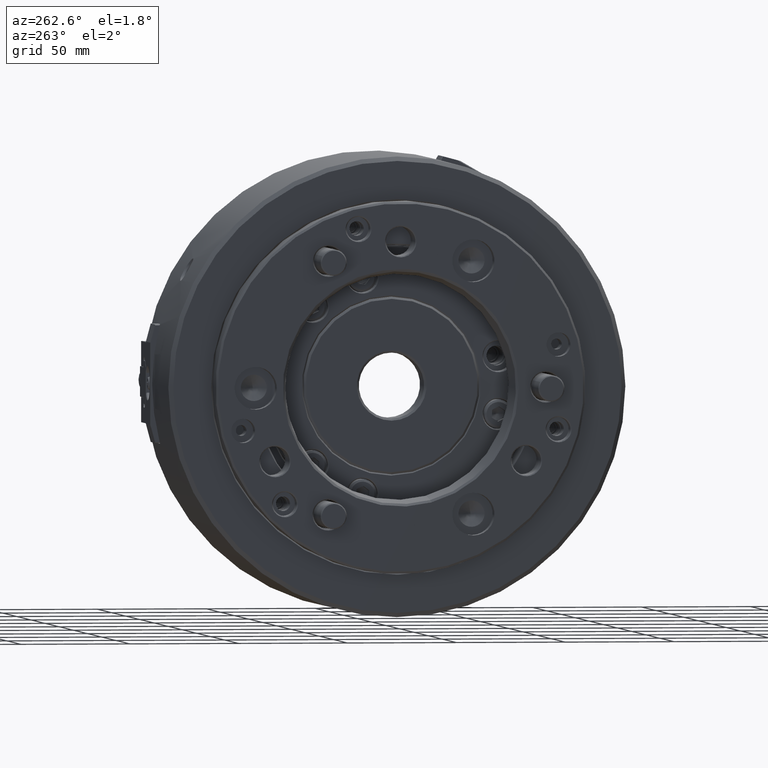
[diagram: clean part render]
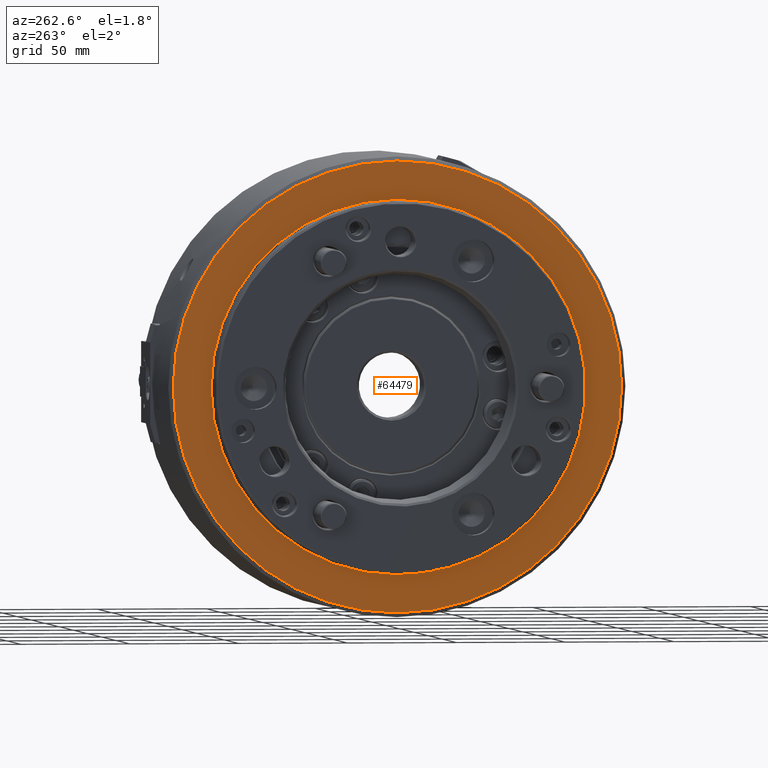
[diagram: same view with one face highlighted and labeled with its STEP entity id]
A machine part, auxiliary view. The second image highlights one B-rep face of the part: STEP entity #64479.
In plain terms, the highlighted planar face has unit normal (-1, 0, 0).
Its self-contained STEP definition (entity closure, byte-faithful):
#12225=PLANE('',#68291);
#24559=ORIENTED_EDGE('',*,*,#31997,.F.);
#24560=ORIENTED_EDGE('',*,*,#31996,.T.);
#31996=EDGE_CURVE('',#36516,#36516,#37873,.T.);
#31997=EDGE_CURVE('',#36517,#36517,#37874,.T.);
#36516=VERTEX_POINT('',#96493);
#36517=VERTEX_POINT('',#96496);
#37873=CIRCLE('',#68290,85.6);
#37874=CIRCLE('',#68292,103.);
#40658=EDGE_LOOP('',(#24559));
#40659=EDGE_LOOP('',(#24560));
#43739=FACE_BOUND('',#40658,.T.);
#43740=FACE_BOUND('',#40659,.T.);
#64479=ADVANCED_FACE('',(#43739,#43740),#12225,.T.);
#68290=AXIS2_PLACEMENT_3D('',#96492,#80359,#80360);
#68291=AXIS2_PLACEMENT_3D('',#96494,#80361,#80362);
#68292=AXIS2_PLACEMENT_3D('',#96495,#80363,#80364);
#80359=DIRECTION('',(1.,0.,0.));
#80360=DIRECTION('',(0.,0.,-1.));
#80361=DIRECTION('',(-1.,0.,0.));
#80362=DIRECTION('',(0.,0.,1.));
#80363=DIRECTION('',(1.,0.,0.));
#80364=DIRECTION('',(0.,0.,-1.));
#96492=CARTESIAN_POINT('',(-91.,0.,0.));
#96493=CARTESIAN_POINT('',(-91.,0.,-85.6));
#96494=CARTESIAN_POINT('',(-91.,51.5,-89.2006165897972));
#96495=CARTESIAN_POINT('',(-91.,0.,0.));
#96496=CARTESIAN_POINT('',(-91.,0.,-103.));